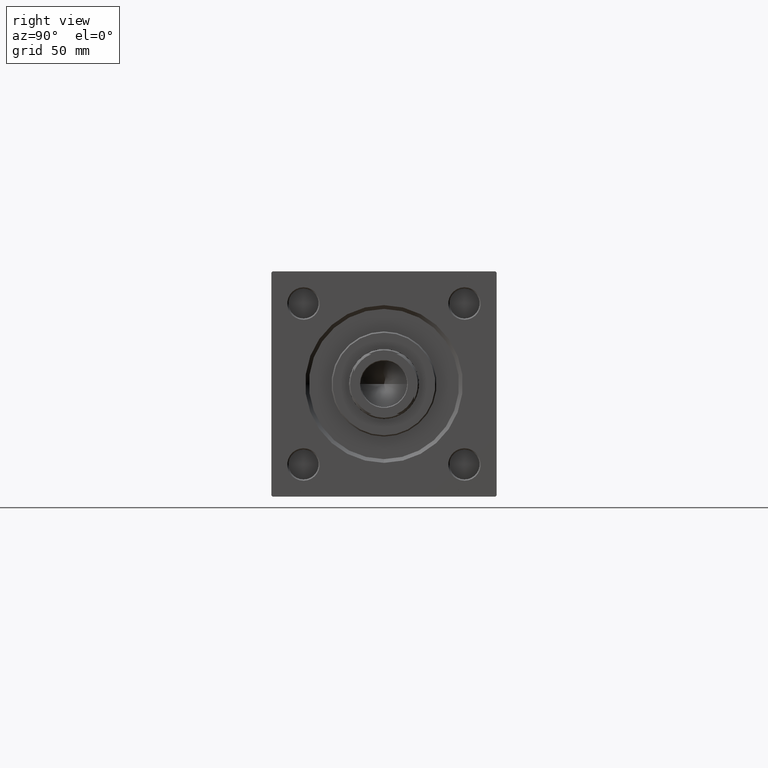
[diagram: clean part render]
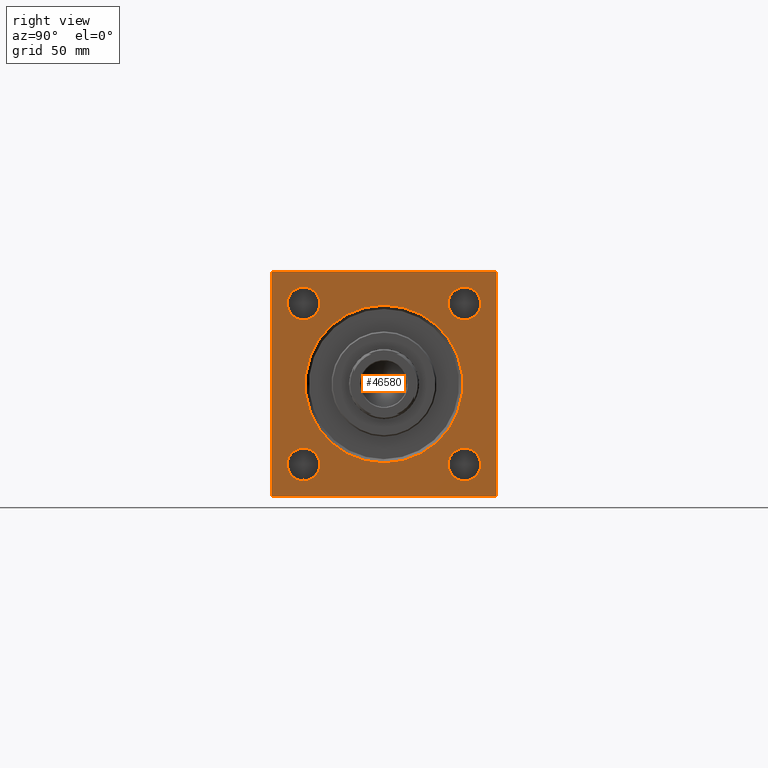
[diagram: same view with one face highlighted and labeled with its STEP entity id]
A machine part, right view. The second image highlights one B-rep face of the part: STEP entity #46580.
In plain terms, the highlighted planar face has unit normal (-1, 0, 0).
Its self-contained STEP definition (entity closure, byte-faithful):
#346 = FACE_BOUND ( 'NONE', #19657, .T. ) ;
#467 = CARTESIAN_POINT ( 'NONE',  ( 215.0000000000000000, -32.15000000000001279, -38.64999999999999147 ) ) ;
#809 = CARTESIAN_POINT ( 'NONE',  ( 215.0000000000000000, 0.000000000000000000, -31.49999999999997158 ) ) ;
#888 = ORIENTED_EDGE ( 'NONE', *, *, #36709, .T. ) ;
#938 = EDGE_CURVE ( 'NONE', #37585, #34559, #41443, .T. ) ;
#2602 = CIRCLE ( 'NONE', #28562, 31.49999999999997158 ) ;
#2639 = AXIS2_PLACEMENT_3D ( 'NONE', #3308, #38587, #34030 ) ;
#2673 = VECTOR ( 'NONE', #6912, 1000.000000000000000 ) ;
#2747 = CARTESIAN_POINT ( 'NONE',  ( 215.0000000000000000, 32.14999999999999147, 25.65000000000003411 ) ) ;
#2848 = CARTESIAN_POINT ( 'NONE',  ( 215.0000000000000000, -32.14999999999999147, 25.65000000000001279 ) ) ;
#3308 = CARTESIAN_POINT ( 'NONE',  ( 215.0000000000000000, 32.14999999999999147, 32.15000000000000568 ) ) ;
#3513 = CARTESIAN_POINT ( 'NONE',  ( 215.0000000000000000, 0.000000000000000000, 0.000000000000000000 ) ) ;
#3794 = ORIENTED_EDGE ( 'NONE', *, *, #6753, .T. ) ;
#3809 = ORIENTED_EDGE ( 'NONE', *, *, #11244, .T. ) ;
#4312 = ORIENTED_EDGE ( 'NONE', *, *, #37872, .T. ) ;
#4346 = ORIENTED_EDGE ( 'NONE', *, *, #5915, .T. ) ;
#4419 = PLANE ( 'NONE',  #35213 ) ;
#4568 = VERTEX_POINT ( 'NONE', #809 ) ;
#5166 = FACE_BOUND ( 'NONE', #32033, .T. ) ;
#5726 = CARTESIAN_POINT ( 'NONE',  ( 215.0000000000000000, -44.99999999999999289, -44.49999999999997158 ) ) ;
#5915 = EDGE_CURVE ( 'NONE', #26589, #17259, #16018, .T. ) ;
#6441 = ORIENTED_EDGE ( 'NONE', *, *, #36485, .T. ) ;
#6753 = EDGE_CURVE ( 'NONE', #19498, #34553, #23604, .T. ) ;
#6912 = DIRECTION ( 'NONE',  ( 0.000000000000000000, -1.000000000000000000, -1.541976423090495140E-16 ) ) ;
#6995 = CARTESIAN_POINT ( 'NONE',  ( 215.0000000000000000, -45.00000000000000000, 44.99999999999998579 ) ) ;
#7435 = CARTESIAN_POINT ( 'NONE',  ( 215.0000000000000000, 45.00000000000001421, 44.50000000000000000 ) ) ;
#7876 = ORIENTED_EDGE ( 'NONE', *, *, #43306, .T. ) ;
#7893 = EDGE_CURVE ( 'NONE', #34559, #37585, #13182, .T. ) ;
#7964 = DIRECTION ( 'NONE',  ( -0.000000000000000000, 0.000000000000000000, 1.000000000000000000 ) ) ;
#8272 = DIRECTION ( 'NONE',  ( -1.000000000000000000, -0.000000000000000000, -0.000000000000000000 ) ) ;
#8447 = LINE ( 'NONE', #28006, #25277 ) ;
#8830 = ORIENTED_EDGE ( 'NONE', *, *, #24522, .T. ) ;
#8951 = CARTESIAN_POINT ( 'NONE',  ( 215.0000000000000000, 32.14999999999999147, -32.15000000000000568 ) ) ;
#9122 = CARTESIAN_POINT ( 'NONE',  ( 215.0000000000000000, 3.857637417314158745E-15, 31.49999999999997158 ) ) ;
#9926 = DIRECTION ( 'NONE',  ( 0.000000000000000000, 0.000000000000000000, -1.000000000000000000 ) ) ;
#10413 = CARTESIAN_POINT ( 'NONE',  ( 215.0000000000000000, 45.00000000000001421, 45.00000000000000000 ) ) ;
#10499 = EDGE_CURVE ( 'NONE', #20241, #13452, #25707, .T. ) ;
#10749 = CARTESIAN_POINT ( 'NONE',  ( 215.0000000000000000, 44.50000000000001421, 45.00000000000000000 ) ) ;
#10851 = CIRCLE ( 'NONE', #19772, 6.499999999999970690 ) ;
#11244 = EDGE_CURVE ( 'NONE', #49278, #21746, #10851, .T. ) ;
#11302 = VERTEX_POINT ( 'NONE', #39471 ) ;
#11309 = LINE ( 'NONE', #6995, #30152 ) ;
#11378 = DIRECTION ( 'NONE',  ( 0.000000000000000000, 0.000000000000000000, 1.000000000000000000 ) ) ;
#11505 = VECTOR ( 'NONE', #17518, 1000.000000000000114 ) ;
#12188 = DIRECTION ( 'NONE',  ( -1.000000000000000000, -0.000000000000000000, -0.000000000000000000 ) ) ;
#12585 = EDGE_CURVE ( 'NONE', #13452, #35628, #26995, .T. ) ;
#12789 = CARTESIAN_POINT ( 'NONE',  ( 215.0000000000000000, -44.50000000000000000, 44.99999999999998579 ) ) ;
#13182 = CIRCLE ( 'NONE', #21269, 6.499999999999977796 ) ;
#13269 = ORIENTED_EDGE ( 'NONE', *, *, #7893, .T. ) ;
#13452 = VERTEX_POINT ( 'NONE', #12789 ) ;
#13713 = ORIENTED_EDGE ( 'NONE', *, *, #41144, .T. ) ;
#14881 = CIRCLE ( 'NONE', #39993, 31.49999999999997158 ) ;
#15249 = CARTESIAN_POINT ( 'NONE',  ( 215.0000000000000000, -32.15000000000001279, -32.15000000000000568 ) ) ;
#15685 = CARTESIAN_POINT ( 'NONE',  ( 215.0000000000000000, 32.14999999999999147, -25.65000000000002700 ) ) ;
#15770 = EDGE_CURVE ( 'NONE', #41972, #11302, #34372, .T. ) ;
#16018 = LINE ( 'NONE', #20582, #38201 ) ;
#16339 = VERTEX_POINT ( 'NONE', #7435 ) ;
#16399 = DIRECTION ( 'NONE',  ( 0.000000000000000000, 0.000000000000000000, 1.000000000000000000 ) ) ;
#16638 = DIRECTION ( 'NONE',  ( -1.000000000000000000, -0.000000000000000000, -0.000000000000000000 ) ) ;
#17173 = DIRECTION ( 'NONE',  ( -1.000000000000000000, -0.000000000000000000, -0.000000000000000000 ) ) ;
#17259 = VERTEX_POINT ( 'NONE', #17931 ) ;
#17518 = DIRECTION ( 'NONE',  ( 0.000000000000000000, -0.7071067811865474617, 0.7071067811865474617 ) ) ;
#17838 = EDGE_LOOP ( 'NONE', ( #41335, #4312 ) ) ;
#17931 = CARTESIAN_POINT ( 'NONE',  ( 215.0000000000000000, 45.00000000000001421, -44.49999999999997158 ) ) ;
#18149 = EDGE_CURVE ( 'NONE', #16339, #17259, #22088, .T. ) ;
#19419 = DIRECTION ( 'NONE',  ( -1.000000000000000000, -0.000000000000000000, -0.000000000000000000 ) ) ;
#19498 = VERTEX_POINT ( 'NONE', #15685 ) ;
#19657 = EDGE_LOOP ( 'NONE', ( #20065, #8830 ) ) ;
#19772 = AXIS2_PLACEMENT_3D ( 'NONE', #37966, #19419, #38472 ) ;
#19910 = DIRECTION ( 'NONE',  ( -1.000000000000000000, 0.000000000000000000, -0.000000000000000000 ) ) ;
#19917 = DIRECTION ( 'NONE',  ( 0.000000000000000000, 0.000000000000000000, 1.000000000000000000 ) ) ;
#20065 = ORIENTED_EDGE ( 'NONE', *, *, #15770, .T. ) ;
#20241 = VERTEX_POINT ( 'NONE', #10749 ) ;
#20377 = EDGE_CURVE ( 'NONE', #34553, #19498, #27223, .T. ) ;
#20582 = CARTESIAN_POINT ( 'NONE',  ( 215.0000000000000000, 45.00000000000001421, -44.50000000000000000 ) ) ;
#21191 = CARTESIAN_POINT ( 'NONE',  ( 215.0000000000000000, 0.000000000000000000, 0.000000000000000000 ) ) ;
#21269 = AXIS2_PLACEMENT_3D ( 'NONE', #24477, #44273, #39959 ) ;
#21746 = VERTEX_POINT ( 'NONE', #31189 ) ;
#22059 = LINE ( 'NONE', #25132, #11505 ) ;
#22088 = LINE ( 'NONE', #10413, #39302 ) ;
#23027 = AXIS2_PLACEMENT_3D ( 'NONE', #15249, #12188, #30990 ) ;
#23364 = EDGE_LOOP ( 'NONE', ( #23700, #3794 ) ) ;
#23604 = CIRCLE ( 'NONE', #43908, 6.499999999999977796 ) ;
#23700 = ORIENTED_EDGE ( 'NONE', *, *, #20377, .T. ) ;
#24215 = FACE_BOUND ( 'NONE', #23364, .T. ) ;
#24415 = CARTESIAN_POINT ( 'NONE',  ( 215.0000000000000000, -45.00000000000000000, 44.50000000000001421 ) ) ;
#24477 = CARTESIAN_POINT ( 'NONE',  ( 215.0000000000000000, -32.14999999999999147, 32.14999999999999147 ) ) ;
#24522 = EDGE_CURVE ( 'NONE', #11302, #41972, #40349, .T. ) ;
#25132 = CARTESIAN_POINT ( 'NONE',  ( 215.0000000000000000, 44.50000000000001421, 45.00000000000000000 ) ) ;
#25277 = VECTOR ( 'NONE', #32315, 999.9999999999998863 ) ;
#25309 = ORIENTED_EDGE ( 'NONE', *, *, #10499, .T. ) ;
#25707 = LINE ( 'NONE', #34088, #2673 ) ;
#26424 = AXIS2_PLACEMENT_3D ( 'NONE', #8951, #44236, #40420 ) ;
#26589 = VERTEX_POINT ( 'NONE', #37749 ) ;
#26732 = VECTOR ( 'NONE', #31529, 1000.000000000000000 ) ;
#26970 = EDGE_LOOP ( 'NONE', ( #3809, #7876 ) ) ;
#26995 = LINE ( 'NONE', #34110, #32784 ) ;
#27223 = CIRCLE ( 'NONE', #26424, 6.499999999999977796 ) ;
#27780 = CARTESIAN_POINT ( 'NONE',  ( 215.0000000000000000, 0.000000000000000000, 0.000000000000000000 ) ) ;
#27974 = CARTESIAN_POINT ( 'NONE',  ( 215.0000000000000000, 45.00000000000001421, -45.00000000000000000 ) ) ;
#28006 = CARTESIAN_POINT ( 'NONE',  ( 215.0000000000000000, -44.49999999999998579, -45.00000000000000000 ) ) ;
#28503 = VERTEX_POINT ( 'NONE', #9122 ) ;
#28562 = AXIS2_PLACEMENT_3D ( 'NONE', #21191, #16638, #36678 ) ;
#29196 = ORIENTED_EDGE ( 'NONE', *, *, #12585, .T. ) ;
#30152 = VECTOR ( 'NONE', #42033, 1000.000000000000000 ) ;
#30645 = AXIS2_PLACEMENT_3D ( 'NONE', #48874, #17173, #40514 ) ;
#30990 = DIRECTION ( 'NONE',  ( 0.000000000000000000, 0.000000000000000000, 1.000000000000000000 ) ) ;
#31050 = EDGE_CURVE ( 'NONE', #26589, #35813, #35586, .T. ) ;
#31189 = CARTESIAN_POINT ( 'NONE',  ( 215.0000000000000000, 32.14999999999999147, 38.64999999999997726 ) ) ;
#31529 = DIRECTION ( 'NONE',  ( 0.000000000000000000, -1.000000000000000000, 0.000000000000000000 ) ) ;
#32033 = EDGE_LOOP ( 'NONE', ( #13269, #32552 ) ) ;
#32095 = FACE_BOUND ( 'NONE', #26970, .T. ) ;
#32315 = DIRECTION ( 'NONE',  ( 0.000000000000000000, 0.7071067811865525687, -0.7071067811865425767 ) ) ;
#32552 = ORIENTED_EDGE ( 'NONE', *, *, #938, .T. ) ;
#32784 = VECTOR ( 'NONE', #33857, 1000.000000000000114 ) ;
#33065 = VERTEX_POINT ( 'NONE', #5726 ) ;
#33857 = DIRECTION ( 'NONE',  ( -0.000000000000000000, -0.7071067811865474617, -0.7071067811865474617 ) ) ;
#34030 = DIRECTION ( 'NONE',  ( 0.000000000000000000, 0.000000000000000000, 1.000000000000000000 ) ) ;
#34088 = CARTESIAN_POINT ( 'NONE',  ( 215.0000000000000000, 45.00000000000001421, 45.00000000000000000 ) ) ;
#34110 = CARTESIAN_POINT ( 'NONE',  ( 215.0000000000000000, -45.00000000000000000, 44.50000000000001421 ) ) ;
#34372 = CIRCLE ( 'NONE', #23027, 6.499999999999977796 ) ;
#34553 = VERTEX_POINT ( 'NONE', #36101 ) ;
#34559 = VERTEX_POINT ( 'NONE', #2848 ) ;
#35151 = DIRECTION ( 'NONE',  ( -1.000000000000000000, -0.000000000000000000, -0.000000000000000000 ) ) ;
#35213 = AXIS2_PLACEMENT_3D ( 'NONE', #27780, #19910, #7964 ) ;
#35454 = CARTESIAN_POINT ( 'NONE',  ( 215.0000000000000000, -32.14999999999999147, 32.14999999999999147 ) ) ;
#35586 = LINE ( 'NONE', #27974, #26732 ) ;
#35628 = VERTEX_POINT ( 'NONE', #24415 ) ;
#35813 = VERTEX_POINT ( 'NONE', #42650 ) ;
#36101 = CARTESIAN_POINT ( 'NONE',  ( 215.0000000000000000, 32.14999999999999147, -38.64999999999999147 ) ) ;
#36485 = EDGE_CURVE ( 'NONE', #35628, #33065, #11309, .T. ) ;
#36678 = DIRECTION ( 'NONE',  ( 0.000000000000000000, 0.000000000000000000, 1.000000000000000000 ) ) ;
#36709 = EDGE_CURVE ( 'NONE', #33065, #35813, #8447, .T. ) ;
#37585 = VERTEX_POINT ( 'NONE', #47675 ) ;
#37749 = CARTESIAN_POINT ( 'NONE',  ( 215.0000000000000000, 44.50000000000001421, -45.00000000000000000 ) ) ;
#37872 = EDGE_CURVE ( 'NONE', #28503, #4568, #2602, .T. ) ;
#37966 = CARTESIAN_POINT ( 'NONE',  ( 215.0000000000000000, 32.14999999999999147, 32.15000000000000568 ) ) ;
#38201 = VECTOR ( 'NONE', #43680, 1000.000000000000114 ) ;
#38472 = DIRECTION ( 'NONE',  ( 0.000000000000000000, 0.000000000000000000, 1.000000000000000000 ) ) ;
#38587 = DIRECTION ( 'NONE',  ( -1.000000000000000000, -0.000000000000000000, -0.000000000000000000 ) ) ;
#38693 = CARTESIAN_POINT ( 'NONE',  ( 215.0000000000000000, 32.14999999999999147, -32.15000000000000568 ) ) ;
#38834 = ORIENTED_EDGE ( 'NONE', *, *, #18149, .F. ) ;
#39302 = VECTOR ( 'NONE', #9926, 1000.000000000000000 ) ;
#39448 = FACE_OUTER_BOUND ( 'NONE', #49018, .T. ) ;
#39471 = CARTESIAN_POINT ( 'NONE',  ( 215.0000000000000000, -32.15000000000001279, -25.65000000000002700 ) ) ;
#39639 = ORIENTED_EDGE ( 'NONE', *, *, #31050, .F. ) ;
#39959 = DIRECTION ( 'NONE',  ( 0.000000000000000000, 0.000000000000000000, 1.000000000000000000 ) ) ;
#39993 = AXIS2_PLACEMENT_3D ( 'NONE', #3513, #49975, #11378 ) ;
#40349 = CIRCLE ( 'NONE', #30645, 6.499999999999977796 ) ;
#40420 = DIRECTION ( 'NONE',  ( 0.000000000000000000, 0.000000000000000000, 1.000000000000000000 ) ) ;
#40514 = DIRECTION ( 'NONE',  ( 0.000000000000000000, 0.000000000000000000, 1.000000000000000000 ) ) ;
#41144 = EDGE_CURVE ( 'NONE', #16339, #20241, #22059, .T. ) ;
#41335 = ORIENTED_EDGE ( 'NONE', *, *, #44422, .T. ) ;
#41443 = CIRCLE ( 'NONE', #44725, 6.499999999999977796 ) ;
#41972 = VERTEX_POINT ( 'NONE', #467 ) ;
#42033 = DIRECTION ( 'NONE',  ( 0.000000000000000000, 7.709882115452478166E-17, -1.000000000000000000 ) ) ;
#42650 = CARTESIAN_POINT ( 'NONE',  ( 215.0000000000000000, -44.49999999999995737, -45.00000000000000000 ) ) ;
#43306 = EDGE_CURVE ( 'NONE', #21746, #49278, #46436, .T. ) ;
#43680 = DIRECTION ( 'NONE',  ( -0.000000000000000000, 0.7071067811865474617, 0.7071067811865474617 ) ) ;
#43908 = AXIS2_PLACEMENT_3D ( 'NONE', #38693, #35151, #19917 ) ;
#44236 = DIRECTION ( 'NONE',  ( -1.000000000000000000, -0.000000000000000000, -0.000000000000000000 ) ) ;
#44273 = DIRECTION ( 'NONE',  ( -1.000000000000000000, -0.000000000000000000, -0.000000000000000000 ) ) ;
#44422 = EDGE_CURVE ( 'NONE', #4568, #28503, #14881, .T. ) ;
#44725 = AXIS2_PLACEMENT_3D ( 'NONE', #35454, #8272, #16399 ) ;
#46436 = CIRCLE ( 'NONE', #2639, 6.499999999999970690 ) ;
#46580 = ADVANCED_FACE ( 'NONE', ( #32095, #5166, #346, #24215, #47071, #39448 ), #4419, .F. ) ;
#47071 = FACE_BOUND ( 'NONE', #17838, .T. ) ;
#47675 = CARTESIAN_POINT ( 'NONE',  ( 215.0000000000000000, -32.14999999999999147, 38.64999999999997016 ) ) ;
#48874 = CARTESIAN_POINT ( 'NONE',  ( 215.0000000000000000, -32.15000000000001279, -32.15000000000000568 ) ) ;
#49018 = EDGE_LOOP ( 'NONE', ( #6441, #888, #39639, #4346, #38834, #13713, #25309, #29196 ) ) ;
#49278 = VERTEX_POINT ( 'NONE', #2747 ) ;
#49975 = DIRECTION ( 'NONE',  ( -1.000000000000000000, -0.000000000000000000, -0.000000000000000000 ) ) ;